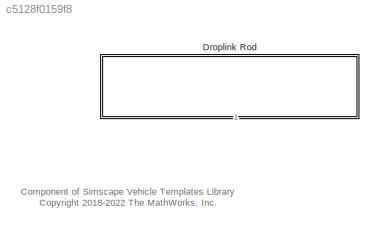
MODEL slx_c5128f0159f8
KIND library
CONFIG AbsTol = auto
CONFIG EnableMultiTasking = off
CONFIG FixedStep = auto
CONFIG MaxStep = auto
CONFIG MinStep = auto
CONFIG RelTol = 1e-3
CONFIG SampleTimeConstraint = Unconstrained
CONFIG SolverName = VariableStepAuto
CONFIG StartTime = 0.0
CONFIG StopTime = 10.0
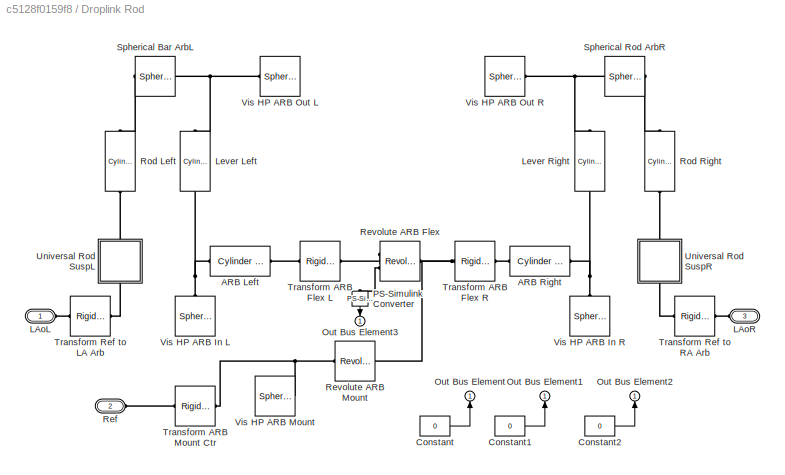
BLOCK [SubSystem] Droplink Rod
  NameLocation = left
  Ports = [0, 1, 0, 0, 0, 3]
  RequestExecContextInheritance = off
  VariantControl = Variant1
BLOCK [Reference] Droplink Rod/ARB Left  REF=sm_car_lib/Utilities/Cylinder Between  (lib defined in slx_05426f0848b6, slx_5dc2867fb1c9)
Two Points
  Ports = [0, 0, 0, 0, 0, 1, 1]
  SourceBlock = sm_car_lib/Utilities/Cylinder Between\nTwo Points
  SourceType = Cylinder between two points
BLOCK [Reference] Droplink Rod/ARB Right  REF=sm_car_lib/Utilities/Cylinder Between  (lib defined in slx_05426f0848b6, slx_5dc2867fb1c9)
Two Points
  Ports = [0, 0, 0, 0, 0, 1, 1]
  SourceBlock = sm_car_lib/Utilities/Cylinder Between\nTwo Points
  SourceType = Cylinder between two points
BLOCK [Constant] Droplink Rod/Constant
  Value = 0
BLOCK [Constant] Droplink Rod/Constant1
  Value = 0
BLOCK [Constant] Droplink Rod/Constant2
  Value = 0
BLOCK [PMIOPort] Droplink Rod/LAoL
  Side = Left
BLOCK [PMIOPort] Droplink Rod/LAoR
  Port = 3
  Side = Left
BLOCK [Reference] Droplink Rod/Lever Left  REF=sm_car_lib/Utilities/Cylinder Between  (lib defined in slx_05426f0848b6, slx_5dc2867fb1c9)
Two Points
  NameLocation = right
  Ports = [0, 0, 0, 0, 0, 1, 1]
  SourceBlock = sm_car_lib/Utilities/Cylinder Between\nTwo Points
  SourceType = Cylinder between two points
BLOCK [Reference] Droplink Rod/Lever Right  REF=sm_car_lib/Utilities/Cylinder Between  (lib defined in slx_05426f0848b6, slx_5dc2867fb1c9)
Two Points
  NameLocation = left
  Ports = [0, 0, 0, 0, 0, 1, 1]
  SourceBlock = sm_car_lib/Utilities/Cylinder Between\nTwo Points
  SourceType = Cylinder between two points
BLOCK [Outport] Droplink Rod/Out Bus Element
  NameLocation = right
  VectorParamsAs1DForOutWhenUnconnected = off
BLOCK [Outport] Droplink Rod/Out Bus Element1
  NameLocation = right
  VectorParamsAs1DForOutWhenUnconnected = off
BLOCK [Outport] Droplink Rod/Out Bus Element2
  NameLocation = left
  VectorParamsAs1DForOutWhenUnconnected = off
BLOCK [Outport] Droplink Rod/Out Bus Element3
  NameLocation = left
  VectorParamsAs1DForOutWhenUnconnected = off
BLOCK [Reference] Droplink Rod/PS-Simulink Converter  REF=nesl_utility/PS-Simulink
Converter
  NameLocation = left
  Ports = [0, 1, 0, 0, 0, 1]
  SourceBlock = nesl_utility/PS-Simulink\nConverter
  SourceProductBaseCode = SS,PW,VE
  SourceType = PS-Simulink\nConverter
BLOCK [PMIOPort] Droplink Rod/Ref
  NameLocation = top
  Port = 2
  Side = Left
BLOCK [Reference] Droplink Rod/Revolute ARB Flex  REF=sm_lib/Joints/Revolute Joint
  Ports = [0, 0, 0, 0, 0, 1, 2]
  SourceBlock = sm_lib/Joints/Revolute Joint
  SourceProductBaseCode = MS
  SourceType = Revolute Joint
BLOCK [Reference] Droplink Rod/Revolute ARB Mount  REF=sm_lib/Joints/Revolute Joint
  Ports = [0, 0, 0, 0, 0, 1, 1]
  SourceBlock = sm_lib/Joints/Revolute Joint
  SourceProductBaseCode = MS
  SourceType = Revolute Joint
BLOCK [Reference] Droplink Rod/Rod Left  REF=sm_car_lib/Utilities/Cylinder Between  (lib defined in slx_05426f0848b6, slx_5dc2867fb1c9)
Two Points
  NameLocation = left
  Ports = [0, 0, 0, 0, 0, 1, 1]
  SourceBlock = sm_car_lib/Utilities/Cylinder Between\nTwo Points
  SourceType = Cylinder between two points
BLOCK [Reference] Droplink Rod/Rod Right  REF=sm_car_lib/Utilities/Cylinder Between  (lib defined in slx_05426f0848b6, slx_5dc2867fb1c9)
Two Points
  NameLocation = right
  Ports = [0, 0, 0, 0, 0, 1, 1]
  SourceBlock = sm_car_lib/Utilities/Cylinder Between\nTwo Points
  SourceType = Cylinder between two points
BLOCK [Reference] Droplink Rod/Spherical Bar ArbL  REF=sm_lib/Joints/Spherical
Joint
  Ports = [0, 0, 0, 0, 0, 1, 1]
  SourceBlock = sm_lib/Joints/Spherical\nJoint
  SourceProductBaseCode = MS
  SourceType = Spherical\nJoint
BLOCK [Reference] Droplink Rod/Spherical Rod ArbR  REF=sm_lib/Joints/Spherical
Joint
  Ports = [0, 0, 0, 0, 0, 1, 1]
  SourceBlock = sm_lib/Joints/Spherical\nJoint
  SourceProductBaseCode = MS
  SourceType = Spherical\nJoint
BLOCK [Reference] Droplink Rod/Transform ARB Flex L  REF=sm_lib/Frames and
Transforms/Rigid
Transform
  NameLocation = top
  Ports = [0, 0, 0, 0, 0, 1, 1]
  SourceBlock = sm_lib/Frames and\nTransforms/Rigid\nTransform
  SourceProductBaseCode = MS
  SourceType = Rigid\nTransform
BLOCK [Reference] Droplink Rod/Transform ARB Flex R  REF=sm_lib/Frames and
Transforms/Rigid
Transform
  NameLocation = top
  Ports = [0, 0, 0, 0, 0, 1, 1]
  SourceBlock = sm_lib/Frames and\nTransforms/Rigid\nTransform
  SourceProductBaseCode = MS
  SourceType = Rigid\nTransform
BLOCK [Reference] Droplink Rod/Transform ARB Mount Ctr  REF=sm_lib/Frames and
Transforms/Rigid
Transform
  Ports = [0, 0, 0, 0, 0, 1, 1]
  SourceBlock = sm_lib/Frames and\nTransforms/Rigid\nTransform
  SourceProductBaseCode = MS
  SourceType = Rigid\nTransform
BLOCK [Reference] Droplink Rod/Transform Ref to LA Arb  REF=sm_lib/Frames and
Transforms/Rigid
Transform
  Ports = [0, 0, 0, 0, 0, 1, 1]
  SourceBlock = sm_lib/Frames and\nTransforms/Rigid\nTransform
  SourceProductBaseCode = MS
  SourceType = Rigid\nTransform
BLOCK [Reference] Droplink Rod/Transform Ref to RA Arb  REF=sm_lib/Frames and
Transforms/Rigid
Transform
  Ports = [0, 0, 0, 0, 0, 1, 1]
  SourceBlock = sm_lib/Frames and\nTransforms/Rigid\nTransform
  SourceProductBaseCode = MS
  SourceType = Rigid\nTransform
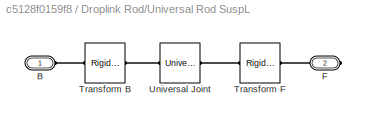
BLOCK [SubSystem] Droplink Rod/Universal Rod SuspL
  NameLocation = left
  Ports = [0, 0, 0, 0, 0, 1, 1]
  RequestExecContextInheritance = off
BLOCK [PMIOPort] Droplink Rod/Universal Rod SuspL/B
  Side = Left
BLOCK [PMIOPort] Droplink Rod/Universal Rod SuspL/F
  Port = 2
  Side = Right
BLOCK [Reference] Droplink Rod/Universal Rod SuspL/Transform B  REF=sm_lib/Frames and
Transforms/Rigid
Transform
  Ports = [0, 0, 0, 0, 0, 1, 1]
  SourceBlock = sm_lib/Frames and\nTransforms/Rigid\nTransform
  SourceProductBaseCode = MS
  SourceType = Rigid\nTransform
BLOCK [Reference] Droplink Rod/Universal Rod SuspL/Transform F  REF=sm_lib/Frames and
Transforms/Rigid
Transform
  Ports = [0, 0, 0, 0, 0, 1, 1]
  SourceBlock = sm_lib/Frames and\nTransforms/Rigid\nTransform
  SourceProductBaseCode = MS
  SourceType = Rigid\nTransform
BLOCK [Reference] Droplink Rod/Universal Rod SuspL/Universal Joint  REF=sm_lib/Joints/Universal
Joint
  Ports = [0, 0, 0, 0, 0, 1, 1]
  SourceBlock = sm_lib/Joints/Universal\nJoint
  SourceProductBaseCode = MS
  SourceType = Universal\nJoint
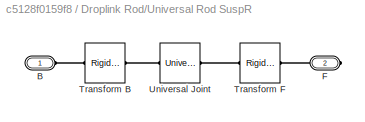
BLOCK [SubSystem] Droplink Rod/Universal Rod SuspR
  NameLocation = right
  Ports = [0, 0, 0, 0, 0, 1, 1]
  RequestExecContextInheritance = off
BLOCK [PMIOPort] Droplink Rod/Universal Rod SuspR/B
  Side = Left
BLOCK [PMIOPort] Droplink Rod/Universal Rod SuspR/F
  Port = 2
  Side = Right
BLOCK [Reference] Droplink Rod/Universal Rod SuspR/Transform B  REF=sm_lib/Frames and
Transforms/Rigid
Transform
  Ports = [0, 0, 0, 0, 0, 1, 1]
  SourceBlock = sm_lib/Frames and\nTransforms/Rigid\nTransform
  SourceProductBaseCode = MS
  SourceType = Rigid\nTransform
BLOCK [Reference] Droplink Rod/Universal Rod SuspR/Transform F  REF=sm_lib/Frames and
Transforms/Rigid
Transform
  Ports = [0, 0, 0, 0, 0, 1, 1]
  SourceBlock = sm_lib/Frames and\nTransforms/Rigid\nTransform
  SourceProductBaseCode = MS
  SourceType = Rigid\nTransform
BLOCK [Reference] Droplink Rod/Universal Rod SuspR/Universal Joint  REF=sm_lib/Joints/Universal
Joint
  Ports = [0, 0, 0, 0, 0, 1, 1]
  SourceBlock = sm_lib/Joints/Universal\nJoint
  SourceProductBaseCode = MS
  SourceType = Universal\nJoint
BLOCK [Reference] Droplink Rod/Vis HP ARB In L  REF=sm_lib/Body Elements/Spherical Solid
  NameLocation = right
  Ports = [0, 0, 0, 0, 0, 0, 1]
  SourceBlock = sm_lib/Body Elements/Spherical Solid
  SourceProductBaseCode = MS
  SourceType = Spherical Solid
BLOCK [Reference] Droplink Rod/Vis HP ARB In R  REF=sm_lib/Body Elements/Spherical Solid
  NameLocation = left
  Ports = [0, 0, 0, 0, 0, 0, 1]
  SourceBlock = sm_lib/Body Elements/Spherical Solid
  SourceProductBaseCode = MS
  SourceType = Spherical Solid
BLOCK [Reference] Droplink Rod/Vis HP ARB Mount  REF=sm_lib/Body Elements/Spherical Solid
  Ports = [0, 0, 0, 0, 0, 0, 1]
  SourceBlock = sm_lib/Body Elements/Spherical Solid
  SourceProductBaseCode = MS
  SourceType = Spherical Solid
BLOCK [Reference] Droplink Rod/Vis HP ARB Out L  REF=sm_lib/Body Elements/Spherical Solid
  Ports = [0, 0, 0, 0, 0, 0, 1]
  SourceBlock = sm_lib/Body Elements/Spherical Solid
  SourceProductBaseCode = MS
  SourceType = Spherical Solid
BLOCK [Reference] Droplink Rod/Vis HP ARB Out R  REF=sm_lib/Body Elements/Spherical Solid
  Ports = [0, 0, 0, 0, 0, 0, 1]
  SourceBlock = sm_lib/Body Elements/Spherical Solid
  SourceProductBaseCode = MS
  SourceType = Spherical Solid
ANNOTATION (root): Component of Simscape Vehicle Templates Library <copyright redacted>
LINE Droplink Rod/Constant1:1 -> Droplink Rod/Out Bus Element1:1
LINE Droplink Rod/Constant2:1 -> Droplink Rod/Out Bus Element2:1
LINE Droplink Rod/Constant:1 -> Droplink Rod/Out Bus Element:1
LINE Droplink Rod/PS-Simulink Converter:1 -> Droplink Rod/Out Bus Element3:1
PLINE Droplink Rod/ARB Left:LConn1 -- Droplink Rod/Transform ARB Flex L:LConn1
PNET net1: Droplink Rod/ARB Left:RConn1 -- Droplink Rod/Lever Left:LConn1 -- Droplink Rod/Vis HP ARB In L:RConn1
PNET net2: Droplink Rod/ARB Right:LConn1 -- Droplink Rod/Lever Right:RConn1 -- Droplink Rod/Vis HP ARB In R:RConn1
PLINE Droplink Rod/ARB Right:RConn1 -- Droplink Rod/Transform ARB Flex R:LConn1
PLINE Droplink Rod/LAoL:RConn1 -- Droplink Rod/Transform Ref to LA Arb:LConn1
PLINE Droplink Rod/LAoR:RConn1 -- Droplink Rod/Transform Ref to RA Arb:LConn1
PNET net3: Droplink Rod/Lever Left:RConn1 -- Droplink Rod/Spherical Bar ArbL:LConn1 -- Droplink Rod/Vis HP ARB Out L:RConn1
PNET net4: Droplink Rod/Lever Right:LConn1 -- Droplink Rod/Spherical Rod ArbR:RConn1 -- Droplink Rod/Vis HP ARB Out R:RConn1
PLINE Droplink Rod/PS-Simulink Converter:LConn1 -- Droplink Rod/Revolute ARB Flex:RConn2
PLINE Droplink Rod/Ref:RConn1 -- Droplink Rod/Transform ARB Mount Ctr:LConn1
PNET net5: Droplink Rod/Revolute ARB Flex:LConn1 -- Droplink Rod/Revolute ARB Mount:RConn1 -- Droplink Rod/Transform ARB Flex R:RConn1
PLINE Droplink Rod/Revolute ARB Flex:RConn1 -- Droplink Rod/Transform ARB Flex L:RConn1
PNET net6: Droplink Rod/Revolute ARB Mount:LConn1 -- Droplink Rod/Transform ARB Mount Ctr:RConn1 -- Droplink Rod/Vis HP ARB Mount:RConn1
PLINE Droplink Rod/Rod Left:LConn1 -- Droplink Rod/Spherical Bar ArbL:RConn1
PLINE Droplink Rod/Rod Left:RConn1 -- Droplink Rod/Universal Rod SuspL:LConn1
PLINE Droplink Rod/Rod Right:LConn1 -- Droplink Rod/Universal Rod SuspR:RConn1
PLINE Droplink Rod/Rod Right:RConn1 -- Droplink Rod/Spherical Rod ArbR:LConn1
PLINE Droplink Rod/Transform Ref to LA Arb:RConn1 -- Droplink Rod/Universal Rod SuspL:RConn1
PLINE Droplink Rod/Transform Ref to RA Arb:RConn1 -- Droplink Rod/Universal Rod SuspR:LConn1
PLINE Droplink Rod/Universal Rod SuspL/B:RConn1 -- Droplink Rod/Universal Rod SuspL/Transform B:LConn1
PLINE Droplink Rod/Universal Rod SuspL/F:RConn1 -- Droplink Rod/Universal Rod SuspL/Transform F:LConn1
PLINE Droplink Rod/Universal Rod SuspL/Transform B:RConn1 -- Droplink Rod/Universal Rod SuspL/Universal Joint:LConn1
PLINE Droplink Rod/Universal Rod SuspL/Transform F:RConn1 -- Droplink Rod/Universal Rod SuspL/Universal Joint:RConn1
PLINE Droplink Rod/Universal Rod SuspR/B:RConn1 -- Droplink Rod/Universal Rod SuspR/Transform B:LConn1
PLINE Droplink Rod/Universal Rod SuspR/F:RConn1 -- Droplink Rod/Universal Rod SuspR/Transform F:LConn1
PLINE Droplink Rod/Universal Rod SuspR/Transform B:RConn1 -- Droplink Rod/Universal Rod SuspR/Universal Joint:LConn1
PLINE Droplink Rod/Universal Rod SuspR/Transform F:RConn1 -- Droplink Rod/Universal Rod SuspR/Universal Joint:RConn1
note: PNET lines group multi-terminal physical nets as a canonical sorted terminal list (undirected conserving connections); 2-terminal nets keep the pairwise PLINE form
